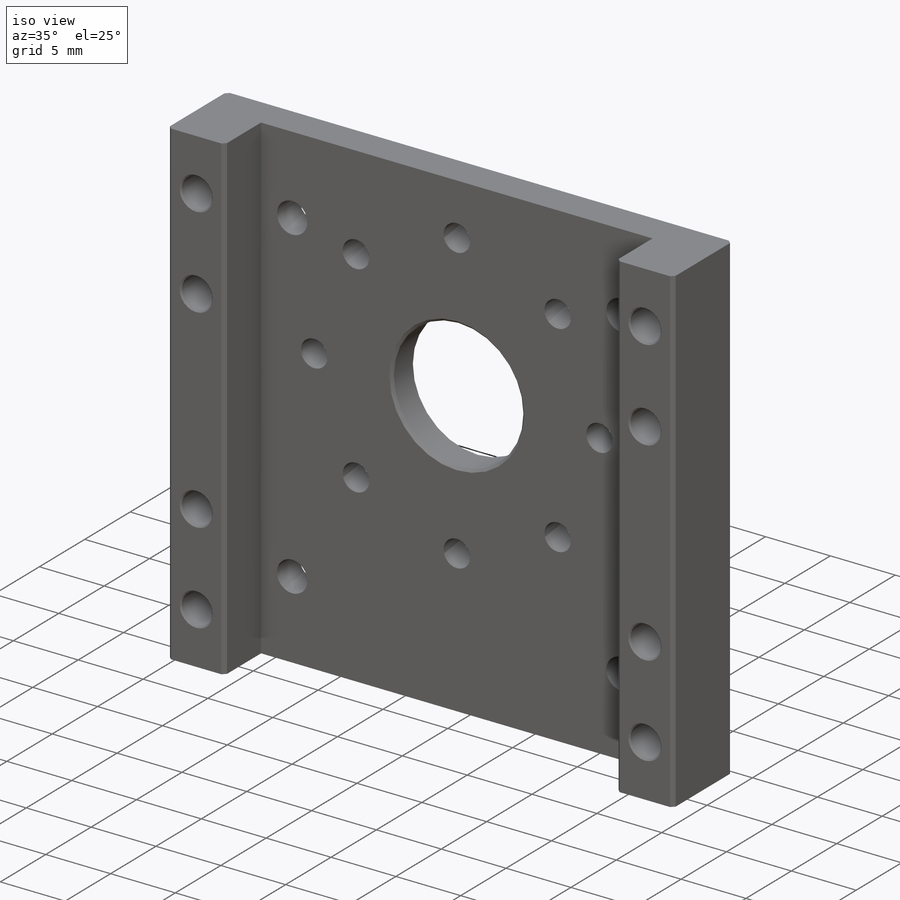
[diagram: iso view]
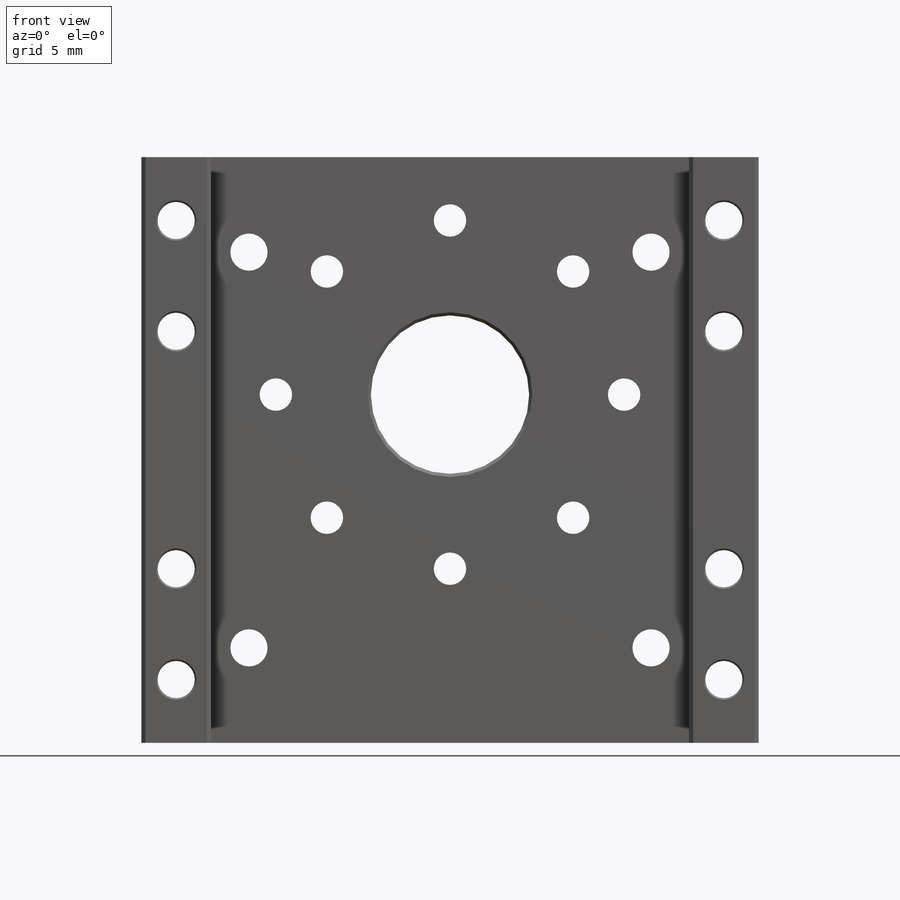
[diagram: front view]
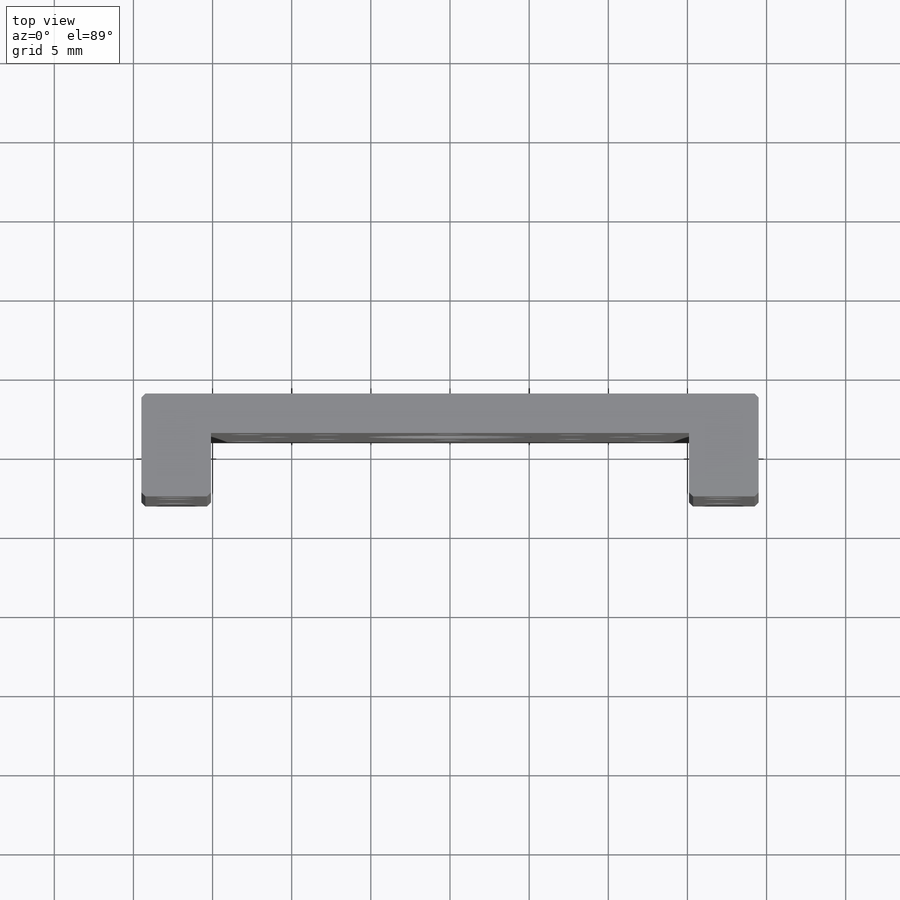
[diagram: top view]
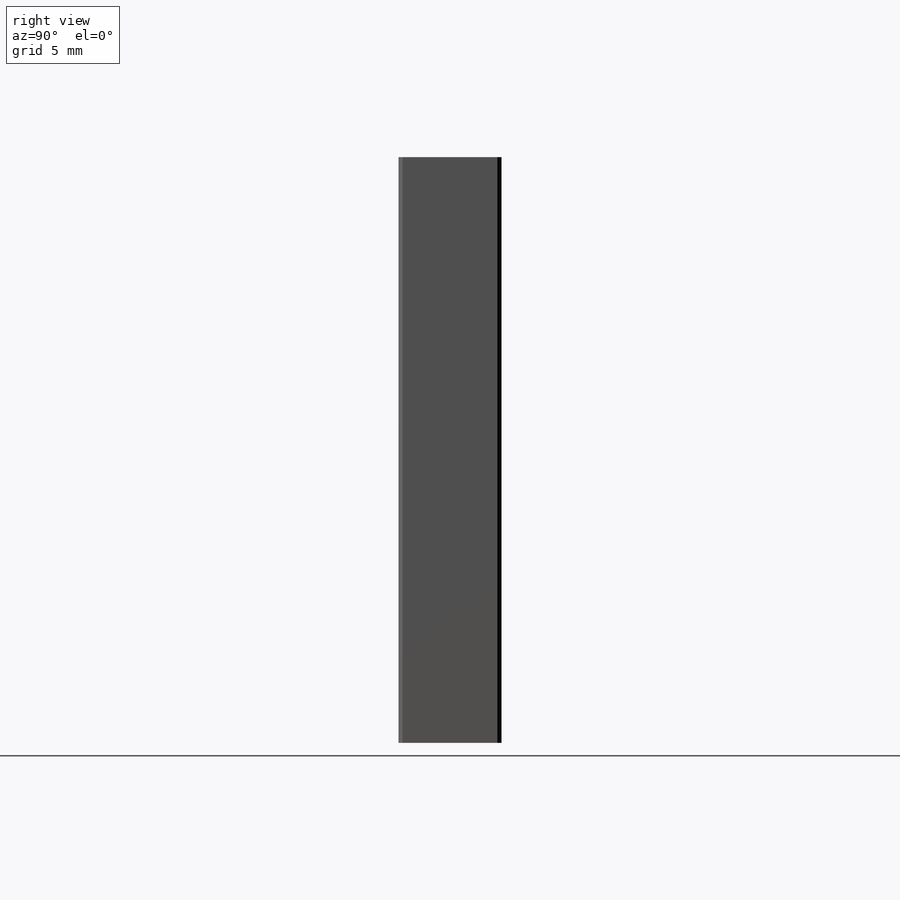
[diagram: right view]
SOLIDWORKS PART (.sldprt)
format: sldprt  version: not decoded by parser v0  size: 711,168 bytes
history: native  units: mm
features: sketch x12, hole x4, plane x2, extrude x2, cut_extrude x2, chamfer x2, material x1 (+13 scaffold rows collapsed)
feature tree (38):
  scaffold x13  (default folders/planes/origin — collapsed)
  material  "Material <not specified>"
  plane  "Plane1"  Offset=17mm
  sketch  "Sketch1"
  extrude  "Boss-Extrude1"  Depth=6.5mm
  sketch  "Sketch2"
  cut_extrude  "Cut-Extrude1"  Depth=37mm
  hole  "Ø10.0 (10) Diameter Hole1"  Diameter=10mm Depth=2.5mm
  sketch  "Sketch4"
  sketch  "Sketch3"  dims[hole-wizard template sketch: 60 standard entries collapsed; hole parameters kept: c18.Thru Hole Depth=2.5mm]
  hole  "Ø2.05 (2.05) Diameter Hole1"  Diameter=2.05mm Depth=6.5mm
  sketch  "Sketch6"
  sketch  "Sketch5"  dims[hole-wizard template sketch: 60 standard entries collapsed; hole parameters kept: c18.Thru Hole Depth=6.5mm]
  hole  "Ø2.05 (2.05) Diameter Hole2"  Diameter=2.05mm Depth=6.5mm
  sketch  "Sketch8"
  sketch  "Sketch7"  dims[hole-wizard template sketch: 60 standard entries collapsed; hole parameters kept: c18.Thru Hole Depth=6.5mm]
  hole  "Ø2.05 (2.05) Diameter Hole3"  Diameter=2.05mm Depth=6.5mm
  sketch  "Sketch10"
  sketch  "Sketch9"  dims[hole-wizard template sketch: 60 standard entries collapsed; hole parameters kept: c18.Thru Hole Depth=6.5mm]
  chamfer  "Chamfer1"  Distance=0.25625mm Angle=45deg
  chamfer  "Chamfer2"  Distance=0.199946mm Angle=45.000297deg
  plane  "Plane2"  Offset=18.5mm
  sketch  "Sketch11"
  extrude  "Boss-Extrude3"  [1 undecoded]
  sketch  "Sketch12"  dims[D3=2.35mm D1=25.0mm D2=25.4mm]
  cut_extrude  "Cut-Extrude2"  [1 undecoded]
decode coverage: 13 of 22 modeling features carry decoded parameters
note: ~ marks probable driven/reference dimensions
note: 2 parameter values undecoded
summary: Diameter pulled from absorbed wizard sketch
note: suppression state not decoded; provenance and decode notes live in map.json
